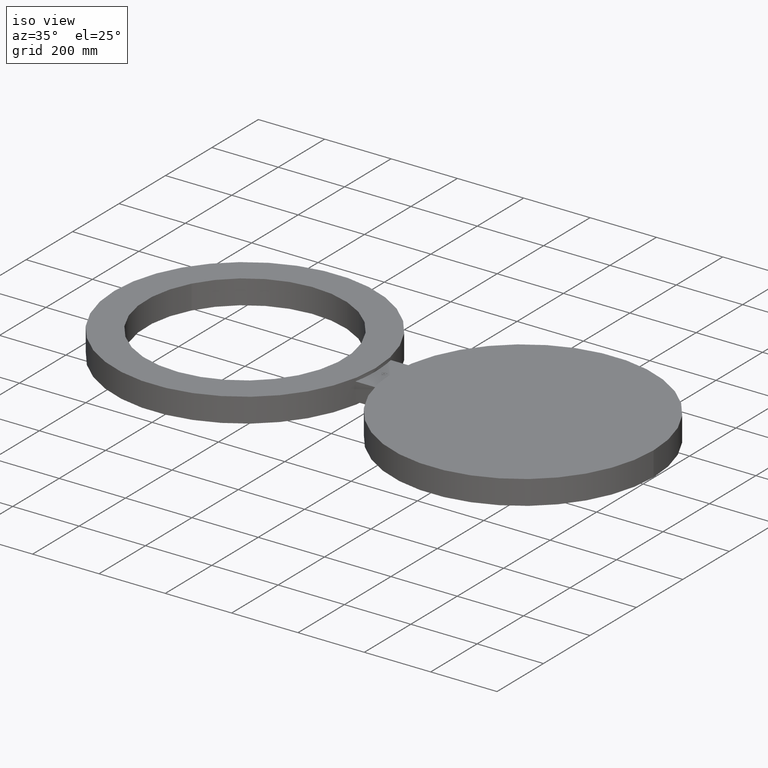
[diagram: clean part render]
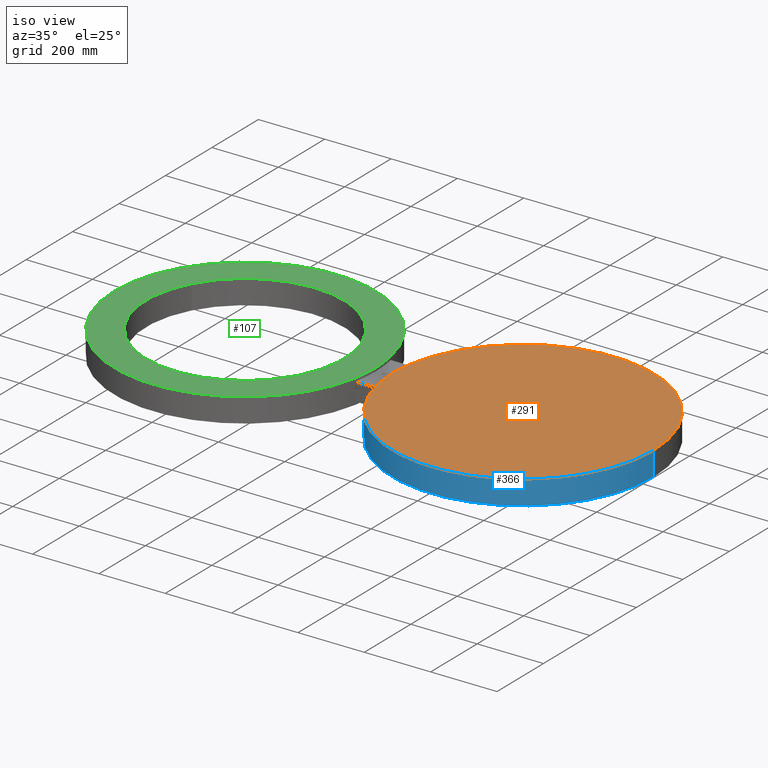
[diagram: same view with three faces highlighted in distinct colors, each labeled with its STEP entity id]
A machine part, iso view with three faces highlighted in distinct colors.
Their STEP definitions:

[orange] entity #291 — the highlighted planar face has unit normal (0, 0, 1).
#78=AXIS2_PLACEMENT_3D('Plane Axis2P3D',#75,#76,#77) ;
#275=AXIS2_PLACEMENT_3D('Circle Axis2P3D',#273,#274,$) ;
#284=AXIS2_PLACEMENT_3D('Circle Axis2P3D',#282,#283,$) ;
#75=CARTESIAN_POINT('Axis2P3D Location',(0.,0.,1.44000000001)) ;
#273=CARTESIAN_POINT('Axis2P3D Location',(33.0000000001,4.0413344372E-015,1.44000000001)) ;
#277=CARTESIAN_POINT('Vertex',(17.5000000001,-9.43845776815E-016,1.44000000001)) ;
#279=CARTESIAN_POINT('Vertex',(48.5000000002,1.40116948652E-014,1.44000000001)) ;
#282=CARTESIAN_POINT('Axis2P3D Location',(33.0000000001,4.0413344372E-015,1.44000000001)) ;
#76=DIRECTION('Axis2P3D Direction',(0.,0.,0.0393700787402)) ;
#77=DIRECTION('Axis2P3D XDirection',(0.0393700787402,0.,0.)) ;
#274=DIRECTION('Axis2P3D Direction',(0.,0.,0.0393700787402)) ;
#283=DIRECTION('Axis2P3D Direction',(0.,0.,0.0393700787402)) ;
#288=ORIENTED_EDGE('',*,*,#281,.T.) ;
#289=ORIENTED_EDGE('',*,*,#286,.T.) ;
#291=ADVANCED_FACE('PartBody',(#290),#79,.T.) ;
#276=CIRCLE('generated circle',#275,15.5000000001) ;
#285=CIRCLE('generated circle',#284,15.5000000001) ;
#281=EDGE_CURVE('',#278,#280,#276,.T.) ;
#286=EDGE_CURVE('',#280,#278,#285,.T.) ;
#287=EDGE_LOOP('',(#288,#289)) ;
#290=FACE_OUTER_BOUND('',#287,.T.) ;
#79=PLANE('',#78) ;
#278=VERTEX_POINT('',#277) ;
#280=VERTEX_POINT('',#279) ;

[blue] entity #366 — the highlighted cylindrical surface (partial cylindrical patch) has radius 393.7 mm, axis along (0, 0, 1).
#265=AXIS2_PLACEMENT_3D('Circle Axis2P3D',#263,#264,$) ;
#275=AXIS2_PLACEMENT_3D('Circle Axis2P3D',#273,#274,$) ;
#295=AXIS2_PLACEMENT_3D('Cylinder Axis2P3D',#292,#293,#294) ;
#348=AXIS2_PLACEMENT_3D('Circle Axis2P3D',#346,#347,$) ;
#353=AXIS2_PLACEMENT_3D('Circle Axis2P3D',#351,#352,$) ;
#227=CARTESIAN_POINT('Vertex',(17.7930936743,-3.00000000001,-1.08)) ;
#230=CARTESIAN_POINT('Line Origine',(17.7930936743,-3.00000000001,0.)) ;
#234=CARTESIAN_POINT('Vertex',(17.7930936743,-3.00000000001,1.08)) ;
#258=CARTESIAN_POINT('Vertex',(48.5000000002,1.40116948652E-014,-1.44000000001)) ;
#260=CARTESIAN_POINT('Vertex',(17.5000000001,-9.43845776815E-016,-1.44000000001)) ;
#263=CARTESIAN_POINT('Axis2P3D Location',(33.0000000001,4.0413344372E-015,-1.44000000001)) ;
#273=CARTESIAN_POINT('Axis2P3D Location',(33.0000000001,4.0413344372E-015,1.44000000001)) ;
#277=CARTESIAN_POINT('Vertex',(17.5000000001,-9.43845776815E-016,1.44000000001)) ;
#279=CARTESIAN_POINT('Vertex',(48.5000000002,1.40116948652E-014,1.44000000001)) ;
#292=CARTESIAN_POINT('Axis2P3D Location',(33.0000000001,4.0413344372E-015,0.)) ;
#297=CARTESIAN_POINT('Line Origine',(17.5000000001,9.73594205326E-015,0.)) ;
#301=CARTESIAN_POINT('Vertex',(17.5000000001,-9.43845776815E-016,1.08)) ;
#304=CARTESIAN_POINT('Line Origine',(48.5000000002,1.40116948652E-014,0.)) ;
#309=CARTESIAN_POINT('Line Origine',(17.5000000001,9.73594205326E-015,0.)) ;
#313=CARTESIAN_POINT('Vertex',(17.5000000001,-9.43845776815E-016,-1.08)) ;
#346=CARTESIAN_POINT('Axis2P3D Location',(33.0000000001,4.0413344372E-015,1.08)) ;
#351=CARTESIAN_POINT('Axis2P3D Location',(33.0000000001,4.0413344372E-015,-1.08)) ;
#231=DIRECTION('Vector Direction',(0.,0.,0.0393700787402)) ;
#264=DIRECTION('Axis2P3D Direction',(0.,0.,0.0393700787402)) ;
#274=DIRECTION('Axis2P3D Direction',(0.,0.,0.0393700787402)) ;
#293=DIRECTION('Axis2P3D Direction',(0.,0.,0.0393700787402)) ;
#294=DIRECTION('Axis2P3D XDirection',(-0.0393700787402,-1.26623830683E-017,-0.)) ;
#298=DIRECTION('Vector Direction',(0.,0.,0.0393700787402)) ;
#305=DIRECTION('Vector Direction',(0.,0.,0.0393700787402)) ;
#310=DIRECTION('Vector Direction',(0.,0.,0.0393700787402)) ;
#347=DIRECTION('Axis2P3D Direction',(0.,0.,0.0393700787402)) ;
#352=DIRECTION('Axis2P3D Direction',(0.,0.,0.0393700787402)) ;
#232=VECTOR('Line Direction',#231,0.0393700787402) ;
#299=VECTOR('Line Direction',#298,0.0393700787402) ;
#306=VECTOR('Line Direction',#305,0.0393700787402) ;
#311=VECTOR('Line Direction',#310,0.0393700787402) ;
#357=ORIENTED_EDGE('',*,*,#315,.F.) ;
#358=ORIENTED_EDGE('',*,*,#267,.T.) ;
#359=ORIENTED_EDGE('',*,*,#308,.T.) ;
#360=ORIENTED_EDGE('',*,*,#281,.F.) ;
#361=ORIENTED_EDGE('',*,*,#303,.F.) ;
#362=ORIENTED_EDGE('',*,*,#350,.T.) ;
#363=ORIENTED_EDGE('',*,*,#236,.F.) ;
#364=ORIENTED_EDGE('',*,*,#355,.F.) ;
#366=ADVANCED_FACE('PartBody',(#365),#296,.T.) ;
#266=CIRCLE('generated circle',#265,15.5000000001) ;
#276=CIRCLE('generated circle',#275,15.5000000001) ;
#349=CIRCLE('generated circle',#348,15.5000000001) ;
#354=CIRCLE('generated circle',#353,15.5000000001) ;
#296=CYLINDRICAL_SURFACE('generated cylinder',#295,15.5000000001) ;
#236=EDGE_CURVE('',#228,#235,#233,.T.) ;
#267=EDGE_CURVE('',#261,#259,#266,.T.) ;
#281=EDGE_CURVE('',#278,#280,#276,.T.) ;
#303=EDGE_CURVE('',#302,#278,#300,.T.) ;
#308=EDGE_CURVE('',#259,#280,#307,.T.) ;
#315=EDGE_CURVE('',#261,#314,#312,.T.) ;
#350=EDGE_CURVE('',#302,#235,#349,.T.) ;
#355=EDGE_CURVE('',#314,#228,#354,.T.) ;
#356=EDGE_LOOP('',(#357,#358,#359,#360,#361,#362,#363,#364)) ;
#365=FACE_OUTER_BOUND('',#356,.T.) ;
#233=LINE('Line',#230,#232) ;
#300=LINE('Line',#297,#299) ;
#307=LINE('Line',#304,#306) ;
#312=LINE('Line',#309,#311) ;
#228=VERTEX_POINT('',#227) ;
#235=VERTEX_POINT('',#234) ;
#259=VERTEX_POINT('',#258) ;
#261=VERTEX_POINT('',#260) ;
#278=VERTEX_POINT('',#277) ;
#280=VERTEX_POINT('',#279) ;
#302=VERTEX_POINT('',#301) ;
#314=VERTEX_POINT('',#313) ;

[green] entity #107 — the highlighted planar face has unit normal (0, 0, 1).
#65=AXIS2_PLACEMENT_3D('Circle Axis2P3D',#63,#64,$) ;
#78=AXIS2_PLACEMENT_3D('Plane Axis2P3D',#75,#76,#77) ;
#82=AXIS2_PLACEMENT_3D('Circle Axis2P3D',#80,#81,$) ;
#91=AXIS2_PLACEMENT_3D('Circle Axis2P3D',#89,#90,$) ;
#100=AXIS2_PLACEMENT_3D('Circle Axis2P3D',#98,#99,$) ;
#46=CARTESIAN_POINT('Vertex',(-10.3115951023,5.63325007862,1.44000000001)) ;
#60=CARTESIAN_POINT('Vertex',(10.3115951023,-5.63325007862,1.44000000001)) ;
#63=CARTESIAN_POINT('Axis2P3D Location',(8.52336574023E-017,-6.99353086378E-017,1.44000000001)) ;
#75=CARTESIAN_POINT('Axis2P3D Location',(0.,0.,1.44000000001)) ;
#80=CARTESIAN_POINT('Axis2P3D Location',(0.,0.,1.44000000001)) ;
#84=CARTESIAN_POINT('Vertex',(15.5000000001,0.,1.44000000001)) ;
#86=CARTESIAN_POINT('Vertex',(-15.5000000001,-4.98518021402E-015,1.44000000001)) ;
#89=CARTESIAN_POINT('Axis2P3D Location',(0.,0.,1.44000000001)) ;
#98=CARTESIAN_POINT('Axis2P3D Location',(1.39870617276E-015,-3.35689481461E-015,1.44000000001)) ;
#64=DIRECTION('Axis2P3D Direction',(0.,-0.,-0.0393700787402)) ;
#76=DIRECTION('Axis2P3D Direction',(0.,0.,0.0393700787402)) ;
#77=DIRECTION('Axis2P3D XDirection',(0.0393700787402,0.,0.)) ;
#81=DIRECTION('Axis2P3D Direction',(0.,0.,0.0393700787402)) ;
#90=DIRECTION('Axis2P3D Direction',(0.,0.,0.0393700787402)) ;
#99=DIRECTION('Axis2P3D Direction',(0.,0.,0.0393700787402)) ;
#95=ORIENTED_EDGE('',*,*,#88,.T.) ;
#96=ORIENTED_EDGE('',*,*,#93,.T.) ;
#104=ORIENTED_EDGE('',*,*,#102,.F.) ;
#105=ORIENTED_EDGE('',*,*,#67,.F.) ;
#106=FACE_BOUND('',#103,.T.) ;
#107=ADVANCED_FACE('PartBody',(#97,#106),#79,.T.) ;
#66=CIRCLE('generated circle',#65,11.75) ;
#83=CIRCLE('generated circle',#82,15.5000000001) ;
#92=CIRCLE('generated circle',#91,15.5000000001) ;
#101=CIRCLE('generated circle',#100,11.75) ;
#67=EDGE_CURVE('',#61,#47,#66,.F.) ;
#88=EDGE_CURVE('',#85,#87,#83,.T.) ;
#93=EDGE_CURVE('',#87,#85,#92,.T.) ;
#102=EDGE_CURVE('',#47,#61,#101,.T.) ;
#94=EDGE_LOOP('',(#95,#96)) ;
#103=EDGE_LOOP('',(#104,#105)) ;
#97=FACE_OUTER_BOUND('',#94,.T.) ;
#79=PLANE('',#78) ;
#47=VERTEX_POINT('',#46) ;
#61=VERTEX_POINT('',#60) ;
#85=VERTEX_POINT('',#84) ;
#87=VERTEX_POINT('',#86) ;